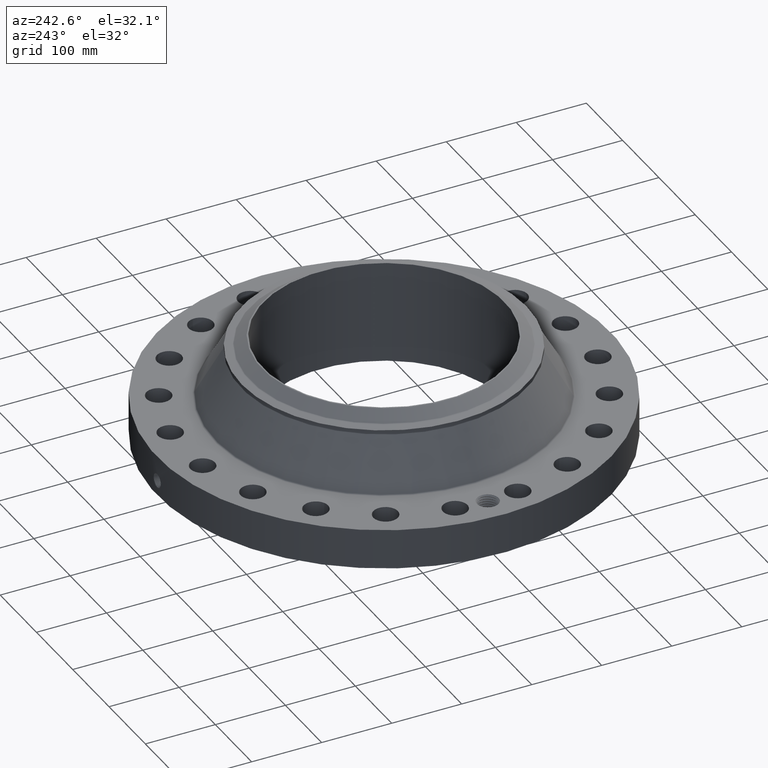
[diagram: clean part render]
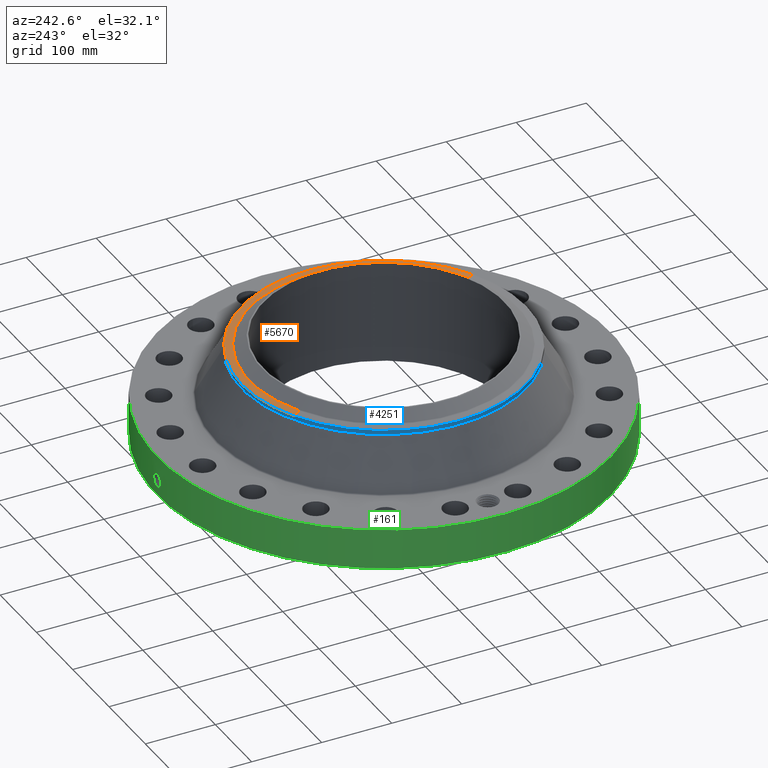
[diagram: same view with three faces highlighted in distinct colors, each labeled with its STEP entity id]
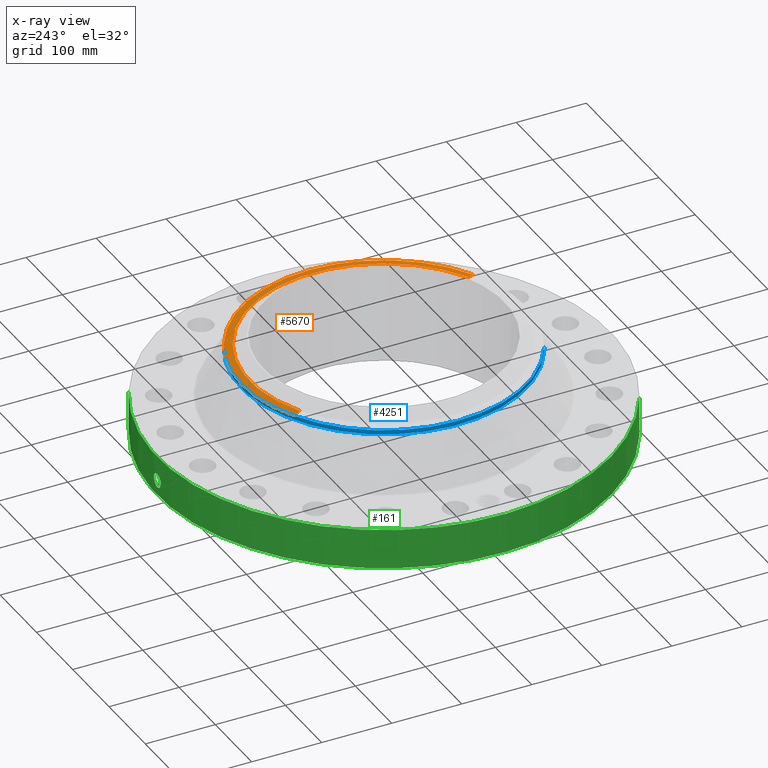
[diagram: x-ray of the same camera — body ghosted, the three highlighted faces saturated]
A machine part, auxiliary view with three faces highlighted in distinct colors.
The next image is the same camera in x-ray (body ghosted, the three faces saturated) — at least one of them is partly hidden behind the body in this view.
Their STEP definitions:

[orange] entity #5670 — the highlighted conical surface has half-angle 80 deg.
#4214=AXIS2_PLACEMENT_3D('Circle Axis2P3D',#4212,#4213,$) ;
#4241=AXIS2_PLACEMENT_3D('Circle Axis2P3D',#4239,#4240,$) ;
#5041=AXIS2_PLACEMENT_3D('Circle Axis2P3D',#5039,#5040,$) ;
#5651=AXIS2_PLACEMENT_3D('Cone Axis2P3D',#5648,#5649,#5650) ;
#4209=CARTESIAN_POINT('Vertex',(3.83540430885,7.02066049515,5.2133902388)) ;
#4212=CARTESIAN_POINT('Axis2P3D Location',(0.,0.,5.2133902388)) ;
#4216=CARTESIAN_POINT('Vertex',(3.83540430885,-7.02066049515,5.2133902388)) ;
#4236=CARTESIAN_POINT('Vertex',(-3.83540430885,7.02066049515,5.2133902388)) ;
#4239=CARTESIAN_POINT('Axis2P3D Location',(0.,0.,5.2133902388)) ;
#5017=CARTESIAN_POINT('Vertex',(-3.62325554033,6.63232477921,5.29141601924)) ;
#5024=CARTESIAN_POINT('Vertex',(3.62325554033,-6.63232477921,5.29141601924)) ;
#5039=CARTESIAN_POINT('Axis2P3D Location',(0.,0.,5.29141601924)) ;
#5648=CARTESIAN_POINT('Axis2P3D Location',(0.,0.,5.29141601924)) ;
#5653=CARTESIAN_POINT('Line Origine',(-3.72932992459,6.82649263718,5.25240312902)) ;
#5658=CARTESIAN_POINT('Line Origine',(3.72932992459,-6.82649263718,5.25240312902)) ;
#4213=DIRECTION('Axis2P3D Direction',(0.,0.,-0.0393700787402)) ;
#4240=DIRECTION('Axis2P3D Direction',(0.,0.,-0.0393700787402)) ;
#5040=DIRECTION('Axis2P3D Direction',(0.,0.,0.0393700787402)) ;
#5649=DIRECTION('Axis2P3D Direction',(-0.,-0.,-0.0393700787402)) ;
#5650=DIRECTION('Axis2P3D XDirection',(0.0188750212049,-0.0345504945626,0.)) ;
#5654=DIRECTION('Vector Direction',(-0.0185882672208,0.0340255949157,-0.00683654242783)) ;
#5659=DIRECTION('Vector Direction',(0.0185882672208,-0.0340255949157,-0.00683654242783)) ;
#5655=VECTOR('Line Direction',#5654,0.0393700787402) ;
#5660=VECTOR('Line Direction',#5659,0.0393700787402) ;
#5664=ORIENTED_EDGE('',*,*,#5657,.F.) ;
#5665=ORIENTED_EDGE('',*,*,#5043,.F.) ;
#5666=ORIENTED_EDGE('',*,*,#5662,.T.) ;
#5667=ORIENTED_EDGE('',*,*,#4218,.T.) ;
#5668=ORIENTED_EDGE('',*,*,#4243,.F.) ;
#5670=ADVANCED_FACE('PartBody',(#5669),#5652,.T.) ;
#4215=CIRCLE('generated circle',#4214,8.00000000003) ;
#4242=CIRCLE('generated circle',#4241,8.00000000003) ;
#5042=CIRCLE('generated circle',#5041,7.55749380995) ;
#5652=CONICAL_SURFACE('Cone',#5651,7.55749380995,1.3962634016) ;
#4218=EDGE_CURVE('',#4217,#4210,#4215,.F.) ;
#4243=EDGE_CURVE('',#4237,#4210,#4242,.T.) ;
#5043=EDGE_CURVE('',#5025,#5018,#5042,.T.) ;
#5657=EDGE_CURVE('',#5018,#4237,#5656,.T.) ;
#5662=EDGE_CURVE('',#5025,#4217,#5661,.T.) ;
#5663=EDGE_LOOP('',(#5664,#5665,#5666,#5667,#5668)) ;
#5669=FACE_OUTER_BOUND('',#5663,.T.) ;
#5656=LINE('Line',#5653,#5655) ;
#5661=LINE('Line',#5658,#5660) ;
#4210=VERTEX_POINT('',#4209) ;
#4217=VERTEX_POINT('',#4216) ;
#4237=VERTEX_POINT('',#4236) ;
#5018=VERTEX_POINT('',#5017) ;
#5025=VERTEX_POINT('',#5024) ;

[blue] entity #4251 — the highlighted cylindrical surface (partial cylindrical patch) has radius 203.2 mm, axis along (0, 0, -1).
#3431=AXIS2_PLACEMENT_3D('Circle Axis2P3D',#3429,#3430,$) ;
#4196=AXIS2_PLACEMENT_3D('Cylinder Axis2P3D',#4193,#4194,#4195) ;
#4234=AXIS2_PLACEMENT_3D('Circle Axis2P3D',#4232,#4233,$) ;
#4241=AXIS2_PLACEMENT_3D('Circle Axis2P3D',#4239,#4240,$) ;
#3407=CARTESIAN_POINT('Vertex',(3.83540430885,7.02066049515,4.97716976636)) ;
#3414=CARTESIAN_POINT('Vertex',(-3.83540430885,-7.02066049515,4.97716976636)) ;
#3429=CARTESIAN_POINT('Axis2P3D Location',(0.,0.,4.97716976636)) ;
#4193=CARTESIAN_POINT('Axis2P3D Location',(0.,0.,2.93500000001)) ;
#4198=CARTESIAN_POINT('Line Origine',(-3.83540430885,-7.02066049515,5.09528000258)) ;
#4202=CARTESIAN_POINT('Vertex',(-3.83540430885,-7.02066049515,5.2133902388)) ;
#4205=CARTESIAN_POINT('Line Origine',(3.83540430885,7.02066049515,5.09528000258)) ;
#4209=CARTESIAN_POINT('Vertex',(3.83540430885,7.02066049515,5.2133902388)) ;
#4232=CARTESIAN_POINT('Axis2P3D Location',(0.,0.,5.2133902388)) ;
#4236=CARTESIAN_POINT('Vertex',(-3.83540430885,7.02066049515,5.2133902388)) ;
#4239=CARTESIAN_POINT('Axis2P3D Location',(0.,0.,5.2133902388)) ;
#3430=DIRECTION('Axis2P3D Direction',(0.,0.,-0.0393700787402)) ;
#4194=DIRECTION('Axis2P3D Direction',(0.,0.,-0.0393700787402)) ;
#4195=DIRECTION('Axis2P3D XDirection',(-0.0188750212049,-0.0345504945626,0.)) ;
#4199=DIRECTION('Vector Direction',(0.,0.,-0.0393700787402)) ;
#4206=DIRECTION('Vector Direction',(0.,0.,-0.0393700787402)) ;
#4233=DIRECTION('Axis2P3D Direction',(0.,0.,-0.0393700787402)) ;
#4240=DIRECTION('Axis2P3D Direction',(0.,0.,-0.0393700787402)) ;
#4200=VECTOR('Line Direction',#4199,0.0393700787402) ;
#4207=VECTOR('Line Direction',#4206,0.0393700787402) ;
#4245=ORIENTED_EDGE('',*,*,#4211,.F.) ;
#4246=ORIENTED_EDGE('',*,*,#3433,.F.) ;
#4247=ORIENTED_EDGE('',*,*,#4204,.T.) ;
#4248=ORIENTED_EDGE('',*,*,#4238,.F.) ;
#4249=ORIENTED_EDGE('',*,*,#4243,.T.) ;
#4251=ADVANCED_FACE('PartBody',(#4250),#4197,.T.) ;
#3432=CIRCLE('generated circle',#3431,8.00000000003) ;
#4235=CIRCLE('generated circle',#4234,8.00000000003) ;
#4242=CIRCLE('generated circle',#4241,8.00000000003) ;
#4197=CYLINDRICAL_SURFACE('generated cylinder',#4196,8.00000000003) ;
#3433=EDGE_CURVE('',#3415,#3408,#3432,.T.) ;
#4204=EDGE_CURVE('',#3415,#4203,#4201,.F.) ;
#4211=EDGE_CURVE('',#3408,#4210,#4208,.F.) ;
#4238=EDGE_CURVE('',#4237,#4203,#4235,.F.) ;
#4243=EDGE_CURVE('',#4237,#4210,#4242,.T.) ;
#4244=EDGE_LOOP('',(#4245,#4246,#4247,#4248,#4249)) ;
#4250=FACE_OUTER_BOUND('',#4244,.T.) ;
#4201=LINE('Line',#4198,#4200) ;
#4208=LINE('Line',#4205,#4207) ;
#3408=VERTEX_POINT('',#3407) ;
#3415=VERTEX_POINT('',#3414) ;
#4203=VERTEX_POINT('',#4202) ;
#4210=VERTEX_POINT('',#4209) ;
#4237=VERTEX_POINT('',#4236) ;

[green] entity #161 — the highlighted cylindrical surface (partial cylindrical patch) has radius 323.85 mm, axis along (0, 0, -1).
#38=AXIS2_PLACEMENT_3D('Cylinder Axis2P3D',#35,#36,#37) ;
#42=AXIS2_PLACEMENT_3D('Circle Axis2P3D',#40,#41,$) ;
#58=AXIS2_PLACEMENT_3D('Circle Axis2P3D',#56,#57,$) ;
#35=CARTESIAN_POINT('Axis2P3D Location',(0.,0.,2.93500000001)) ;
#40=CARTESIAN_POINT('Axis2P3D Location',(0.,0.,0.0600000000002)) ;
#44=CARTESIAN_POINT('Vertex',(-6.11267561723,-11.1891776641,0.0600000000002)) ;
#46=CARTESIAN_POINT('Vertex',(6.11267561723,11.1891776641,0.0600000000002)) ;
#49=CARTESIAN_POINT('Line Origine',(-6.11267561723,-11.1891776641,1.185)) ;
#53=CARTESIAN_POINT('Vertex',(-6.11267561723,-11.1891776641,2.31000000001)) ;
#56=CARTESIAN_POINT('Axis2P3D Location',(0.,0.,2.31000000001)) ;
#60=CARTESIAN_POINT('Vertex',(6.11267561723,11.1891776641,2.31000000001)) ;
#63=CARTESIAN_POINT('Line Origine',(6.11267561723,11.1891776641,1.185)) ;
#75=CARTESIAN_POINT('Control Point',(-0.00071622107655,12.7499999799,1.29411846088)) ;
#76=CARTESIAN_POINT('Control Point',(-0.0192056909296,12.7499989413,1.2940811042)) ;
#77=CARTESIAN_POINT('Control Point',(-0.037691886255,12.749957358,1.29259135831)) ;
#78=CARTESIAN_POINT('Control Point',(-0.0559484449227,12.7498772454,1.2896676695)) ;
#79=CARTESIAN_POINT('Vertex',(-0.000715799889837,12.74999998,1.29411851024)) ;
#81=CARTESIAN_POINT('Vertex',(-0.0559392979336,12.7498775403,1.28966915328)) ;
#85=CARTESIAN_POINT('Control Point',(-0.055939200232,12.749877286,1.28966859718)) ;
#86=CARTESIAN_POINT('Control Point',(-0.0961344830571,12.749700932,1.28514555477)) ;
#87=CARTESIAN_POINT('Control Point',(-0.135662252486,12.7493301535,1.27330266976)) ;
#88=CARTESIAN_POINT('Control Point',(-0.172040385174,12.7488392455,1.25494868271)) ;
#89=CARTESIAN_POINT('Vertex',(-0.172040385174,12.7488392455,1.25494868271)) ;
#93=CARTESIAN_POINT('Control Point',(-0.030810823393,12.7499627723,0.531174008101)) ;
#94=CARTESIAN_POINT('Control Point',(-0.0999546104629,12.7497956834,0.539935338984)) ;
#95=CARTESIAN_POINT('Control Point',(-0.166759413696,12.7491655306,0.564146634138)) ;
#96=CARTESIAN_POINT('Control Point',(-0.226389957207,12.7481446874,0.602973146375)) ;
#97=CARTESIAN_POINT('Control Point',(-0.298759222742,12.7465677593,0.677010268014)) ;
#98=CARTESIAN_POINT('Control Point',(-0.343480925529,12.7453828601,0.767215712473)) ;
#99=CARTESIAN_POINT('Control Point',(-0.354926209659,12.745063309,0.797930279802)) ;
#100=CARTESIAN_POINT('Control Point',(-0.373429793514,12.7445343214,0.86924521805)) ;
#101=CARTESIAN_POINT('Control Point',(-0.375104751106,12.7444792671,0.942596969659)) ;
#102=CARTESIAN_POINT('Control Point',(-0.370729704707,12.7446111718,0.983234573401)) ;
#103=CARTESIAN_POINT('Control Point',(-0.348316563834,12.745269017,1.07561109935)) ;
#104=CARTESIAN_POINT('Control Point',(-0.299005494456,12.7465456064,1.15696170488)) ;
#105=CARTESIAN_POINT('Control Point',(-0.262643848651,12.7473952472,1.19786903552)) ;
#106=CARTESIAN_POINT('Control Point',(-0.219548986037,12.7481981363,1.23097900003)) ;
#107=CARTESIAN_POINT('Control Point',(-0.172040385174,12.7488392455,1.25494868271)) ;
#108=CARTESIAN_POINT('Vertex',(-0.030810823393,12.7499627723,0.531174008101)) ;
#112=CARTESIAN_POINT('Control Point',(-0.030810823393,12.7499627723,0.531174008101)) ;
#113=CARTESIAN_POINT('Control Point',(-0.0205353999324,12.7499876033,0.530872367684)) ;
#114=CARTESIAN_POINT('Control Point',(-0.0102531277833,12.7500000022,0.530939425497)) ;
#115=CARTESIAN_POINT('Control Point',(2.72878355366E-006,12.7500000001,0.531374667805)) ;
#116=CARTESIAN_POINT('Vertex',(2.72878354201E-006,12.7500000001,0.531374667805)) ;
#120=CARTESIAN_POINT('Control Point',(0.192797685506,12.7485422325,0.587096993604)) ;
#121=CARTESIAN_POINT('Control Point',(0.149071702691,12.7492035056,0.561854438164)) ;
#122=CARTESIAN_POINT('Control Point',(0.101128961576,12.7497293521,0.543715224091)) ;
#123=CARTESIAN_POINT('Control Point',(0.0508105141065,12.7499999892,0.53353086573)) ;
#124=CARTESIAN_POINT('Control Point',(2.72878353102E-006,12.7500000001,0.531374667805)) ;
#125=CARTESIAN_POINT('Vertex',(0.192797685506,12.7485422325,0.587096993604)) ;
#129=CARTESIAN_POINT('Control Point',(0.192797685506,12.7485422325,0.587096993604)) ;
#130=CARTESIAN_POINT('Control Point',(0.249749528861,12.7476809432,0.61997470109)) ;
#131=CARTESIAN_POINT('Control Point',(0.300014616681,12.7466026779,0.664147622477)) ;
#132=CARTESIAN_POINT('Control Point',(0.34046127208,12.7455024632,0.718136963462)) ;
#133=CARTESIAN_POINT('Control Point',(0.385069983997,12.7441957942,0.816179521018)) ;
#134=CARTESIAN_POINT('Control Point',(0.393917718129,12.7439118253,0.921478505033)) ;
#135=CARTESIAN_POINT('Control Point',(0.391894356738,12.743976098,0.96157130174)) ;
#136=CARTESIAN_POINT('Control Point',(0.377905154876,12.7444129307,1.03639829573)) ;
#137=CARTESIAN_POINT('Control Point',(0.345953377784,12.7453207298,1.1047775653)) ;
#138=CARTESIAN_POINT('Control Point',(0.326955705238,12.7458335864,1.1351956517)) ;
#139=CARTESIAN_POINT('Control Point',(0.265053361012,12.7473627065,1.21210536802)) ;
#140=CARTESIAN_POINT('Control Point',(0.181582136193,12.748888363,1.2654022834)) ;
#141=CARTESIAN_POINT('Control Point',(0.122355690586,12.749638806,1.28761817336)) ;
#142=CARTESIAN_POINT('Control Point',(0.0606924292127,12.7500001232,1.29712989006)) ;
#143=CARTESIAN_POINT('Control Point',(-2.5857935537E-005,12.75,1.29415298431)) ;
#144=CARTESIAN_POINT('Vertex',(-2.5857935546E-005,12.75,1.29415298431)) ;
#148=CARTESIAN_POINT('Control Point',(-0.000715799880076,12.74999998,1.29411851023)) ;
#149=CARTESIAN_POINT('Control Point',(-0.000370853334392,12.7499999993,1.29413606983)) ;
#150=CARTESIAN_POINT('Control Point',(-2.58579408056E-005,12.75,1.2941529843)) ;
#36=DIRECTION('Axis2P3D Direction',(0.,0.,-0.0393700787402)) ;
#37=DIRECTION('Axis2P3D XDirection',(0.0188750212049,0.0345504945626,0.)) ;
#41=DIRECTION('Axis2P3D Direction',(0.,0.,-0.0393700787402)) ;
#50=DIRECTION('Vector Direction',(0.,0.,-0.0393700787402)) ;
#57=DIRECTION('Axis2P3D Direction',(0.,0.,-0.0393700787402)) ;
#64=DIRECTION('Vector Direction',(0.,0.,-0.0393700787402)) ;
#51=VECTOR('Line Direction',#50,0.0393700787402) ;
#65=VECTOR('Line Direction',#64,0.0393700787402) ;
#69=ORIENTED_EDGE('',*,*,#48,.F.) ;
#70=ORIENTED_EDGE('',*,*,#55,.T.) ;
#71=ORIENTED_EDGE('',*,*,#62,.T.) ;
#72=ORIENTED_EDGE('',*,*,#67,.F.) ;
#153=ORIENTED_EDGE('',*,*,#83,.T.) ;
#154=ORIENTED_EDGE('',*,*,#91,.T.) ;
#155=ORIENTED_EDGE('',*,*,#110,.F.) ;
#156=ORIENTED_EDGE('',*,*,#118,.T.) ;
#157=ORIENTED_EDGE('',*,*,#127,.F.) ;
#158=ORIENTED_EDGE('',*,*,#146,.T.) ;
#159=ORIENTED_EDGE('',*,*,#151,.F.) ;
#160=FACE_BOUND('',#152,.T.) ;
#161=ADVANCED_FACE('PartBody',(#73,#160),#39,.T.) ;
#74=B_SPLINE_CURVE_WITH_KNOTS('',3,(#75,#76,#77,#78),.UNSPECIFIED.,.F.,.U.,(4,4),(34.6164487369,36.6676805677),.UNSPECIFIED.) ;
#84=B_SPLINE_CURVE_WITH_KNOTS('',3,(#85,#86,#87,#88),.UNSPECIFIED.,.F.,.U.,(4,4),(0.,4.54498819054),.UNSPECIFIED.) ;
#92=B_SPLINE_CURVE_WITH_KNOTS('',5,(#93,#94,#95,#96,#97,#98,#99,#100,#101,#102,#103,#104,#105,#106,#107),.UNSPECIFIED.,.F.,.U.,(6,3,3,3,6),(0.,12.1125843992,17.9739548092,25.3575269761,35.2501930929),.UNSPECIFIED.) ;
#111=B_SPLINE_CURVE_WITH_KNOTS('',3,(#112,#113,#114,#115),.UNSPECIFIED.,.F.,.U.,(4,4),(0.,1.07185696031),.UNSPECIFIED.) ;
#119=B_SPLINE_CURVE_WITH_KNOTS('',4,(#120,#121,#122,#123,#124),.UNSPECIFIED.,.F.,.U.,(5,5),(0.,7.08001036102),.UNSPECIFIED.) ;
#128=B_SPLINE_CURVE_WITH_KNOTS('',5,(#129,#130,#131,#132,#133,#134,#135,#136,#137,#138,#139,#140,#141,#142,#143),.UNSPECIFIED.,.F.,.U.,(6,3,3,3,6),(0.,11.5268890425,18.5780212265,24.9818144779,36.3313222967),.UNSPECIFIED.) ;
#147=B_SPLINE_CURVE_WITH_KNOTS('',2,(#148,#149,#150),.UNSPECIFIED.,.F.,.U.,(3,3),(1.02805109055,1.05384581088),.UNSPECIFIED.) ;
#43=CIRCLE('generated circle',#42,12.7500000001) ;
#59=CIRCLE('generated circle',#58,12.7500000001) ;
#39=CYLINDRICAL_SURFACE('generated cylinder',#38,12.7500000001) ;
#48=EDGE_CURVE('',#45,#47,#43,.T.) ;
#55=EDGE_CURVE('',#45,#54,#52,.F.) ;
#62=EDGE_CURVE('',#54,#61,#59,.T.) ;
#67=EDGE_CURVE('',#47,#61,#66,.F.) ;
#83=EDGE_CURVE('',#80,#82,#74,.T.) ;
#91=EDGE_CURVE('',#82,#90,#84,.T.) ;
#110=EDGE_CURVE('',#109,#90,#92,.T.) ;
#118=EDGE_CURVE('',#109,#117,#111,.T.) ;
#127=EDGE_CURVE('',#126,#117,#119,.T.) ;
#146=EDGE_CURVE('',#126,#145,#128,.T.) ;
#151=EDGE_CURVE('',#80,#145,#147,.T.) ;
#68=EDGE_LOOP('',(#69,#70,#71,#72)) ;
#152=EDGE_LOOP('',(#153,#154,#155,#156,#157,#158,#159)) ;
#73=FACE_OUTER_BOUND('',#68,.T.) ;
#52=LINE('Line',#49,#51) ;
#66=LINE('Line',#63,#65) ;
#45=VERTEX_POINT('',#44) ;
#47=VERTEX_POINT('',#46) ;
#54=VERTEX_POINT('',#53) ;
#61=VERTEX_POINT('',#60) ;
#80=VERTEX_POINT('',#79) ;
#82=VERTEX_POINT('',#81) ;
#90=VERTEX_POINT('',#89) ;
#109=VERTEX_POINT('',#108) ;
#117=VERTEX_POINT('',#116) ;
#126=VERTEX_POINT('',#125) ;
#145=VERTEX_POINT('',#144) ;